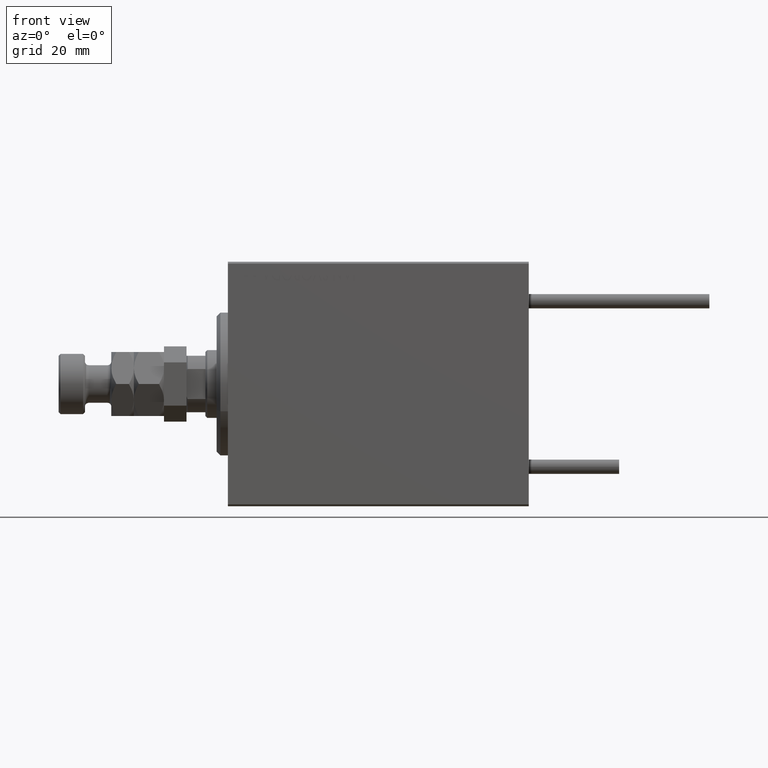
[diagram: clean part render]
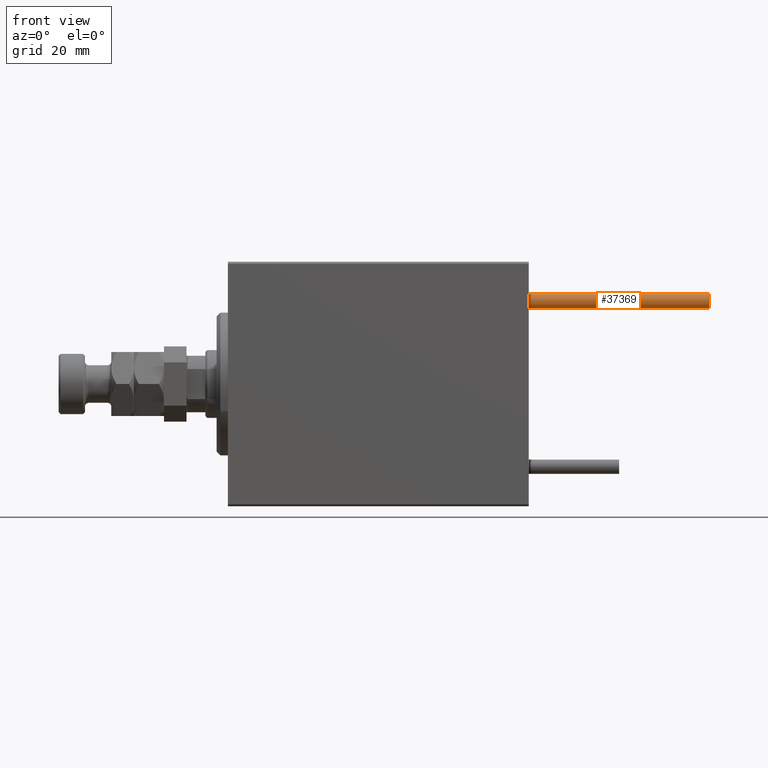
[diagram: same view with one face highlighted and labeled with its STEP entity id]
A machine part, front view. The second image highlights one B-rep face of the part: STEP entity #37369.
In plain terms, the highlighted cylindrical surface (edge-blend (fillet) strip) has radius 1.9 mm, axis along (-1, -0, 0).
Its self-contained STEP definition (entity closure, byte-faithful):
#3186 = CARTESIAN_POINT ( 'NONE',  ( 1.899999999999999467, 2.326828918379970872E-16, 48.00000000000000000 ) ) ;
#6062 = LINE ( 'NONE', #17620, #16744 ) ;
#6275 = ORIENTED_EDGE ( 'NONE', *, *, #21850, .F. ) ;
#7671 = DIRECTION ( 'NONE',  ( -0.000000000000000000, -0.000000000000000000, -1.000000000000000000 ) ) ;
#9233 = EDGE_CURVE ( 'NONE', #12347, #33875, #27643, .T. ) ;
#9961 = CIRCLE ( 'NONE', #47753, 1.899999999999999467 ) ;
#11002 = VERTEX_POINT ( 'NONE', #21675 ) ;
#11168 = ORIENTED_EDGE ( 'NONE', *, *, #9233, .F. ) ;
#11549 = EDGE_LOOP ( 'NONE', ( #6275, #11168, #17847, #46412 ) ) ;
#12347 = VERTEX_POINT ( 'NONE', #46223 ) ;
#15557 = CYLINDRICAL_SURFACE ( 'NONE', #44801, 1.899999999999999467 ) ;
#16744 = VECTOR ( 'NONE', #49951, 1000.000000000000000 ) ;
#17620 = CARTESIAN_POINT ( 'NONE',  ( -1.899999999999999467, 0.000000000000000000, 48.00000000000000000 ) ) ;
#17847 = ORIENTED_EDGE ( 'NONE', *, *, #44191, .T. ) ;
#21675 = CARTESIAN_POINT ( 'NONE',  ( 1.899999999999999467, 2.326828918379970872E-16, 0.000000000000000000 ) ) ;
#21850 = EDGE_CURVE ( 'NONE', #33875, #11002, #23151, .T. ) ;
#23072 = EDGE_CURVE ( 'NONE', #30816, #11002, #9961, .T. ) ;
#23135 = CARTESIAN_POINT ( 'NONE',  ( 0.000000000000000000, 0.000000000000000000, 48.00000000000000000 ) ) ;
#23151 = LINE ( 'NONE', #3186, #48592 ) ;
#24600 = CARTESIAN_POINT ( 'NONE',  ( -1.899999999999999467, 0.000000000000000000, 0.000000000000000000 ) ) ;
#26849 = CARTESIAN_POINT ( 'NONE',  ( 1.899999999999999467, 2.326828918379970872E-16, 48.00000000000000000 ) ) ;
#27643 = CIRCLE ( 'NONE', #45256, 1.899999999999999467 ) ;
#28346 = DIRECTION ( 'NONE',  ( 0.000000000000000000, 0.000000000000000000, 1.000000000000000000 ) ) ;
#28867 = DIRECTION ( 'NONE',  ( 1.000000000000000000, 0.000000000000000000, 0.000000000000000000 ) ) ;
#30816 = VERTEX_POINT ( 'NONE', #24600 ) ;
#33875 = VERTEX_POINT ( 'NONE', #26849 ) ;
#34206 = DIRECTION ( 'NONE',  ( 0.000000000000000000, 0.000000000000000000, 1.000000000000000000 ) ) ;
#35770 = DIRECTION ( 'NONE',  ( -0.000000000000000000, -0.000000000000000000, -1.000000000000000000 ) ) ;
#37369 = ADVANCED_FACE ( 'NONE', ( #39464 ), #15557, .T. ) ;
#39464 = FACE_OUTER_BOUND ( 'NONE', #11549, .T. ) ;
#42638 = DIRECTION ( 'NONE',  ( -1.000000000000000000, 0.000000000000000000, 0.000000000000000000 ) ) ;
#42828 = CARTESIAN_POINT ( 'NONE',  ( 0.000000000000000000, 0.000000000000000000, 0.000000000000000000 ) ) ;
#43112 = DIRECTION ( 'NONE',  ( 1.000000000000000000, 0.000000000000000000, 0.000000000000000000 ) ) ;
#44191 = EDGE_CURVE ( 'NONE', #12347, #30816, #6062, .T. ) ;
#44801 = AXIS2_PLACEMENT_3D ( 'NONE', #51574, #7671, #42638 ) ;
#45256 = AXIS2_PLACEMENT_3D ( 'NONE', #23135, #34206, #43112 ) ;
#46223 = CARTESIAN_POINT ( 'NONE',  ( -1.899999999999999467, 0.000000000000000000, 48.00000000000000000 ) ) ;
#46412 = ORIENTED_EDGE ( 'NONE', *, *, #23072, .T. ) ;
#47753 = AXIS2_PLACEMENT_3D ( 'NONE', #42828, #28346, #28867 ) ;
#48592 = VECTOR ( 'NONE', #35770, 1000.000000000000000 ) ;
#49951 = DIRECTION ( 'NONE',  ( -0.000000000000000000, -0.000000000000000000, -1.000000000000000000 ) ) ;
#51574 = CARTESIAN_POINT ( 'NONE',  ( 0.000000000000000000, 0.000000000000000000, 48.00000000000000000 ) ) ;